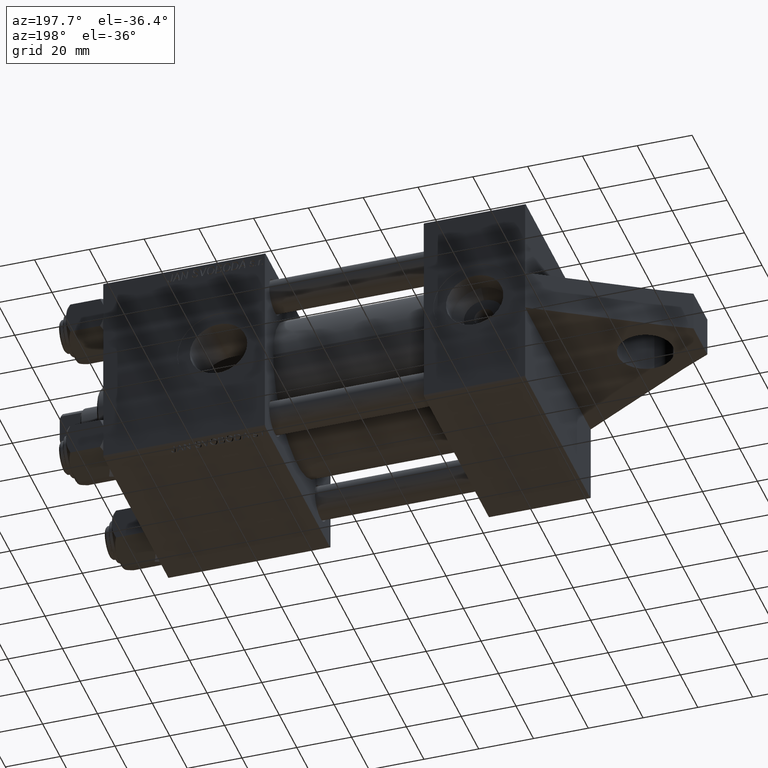
[diagram: clean part render]
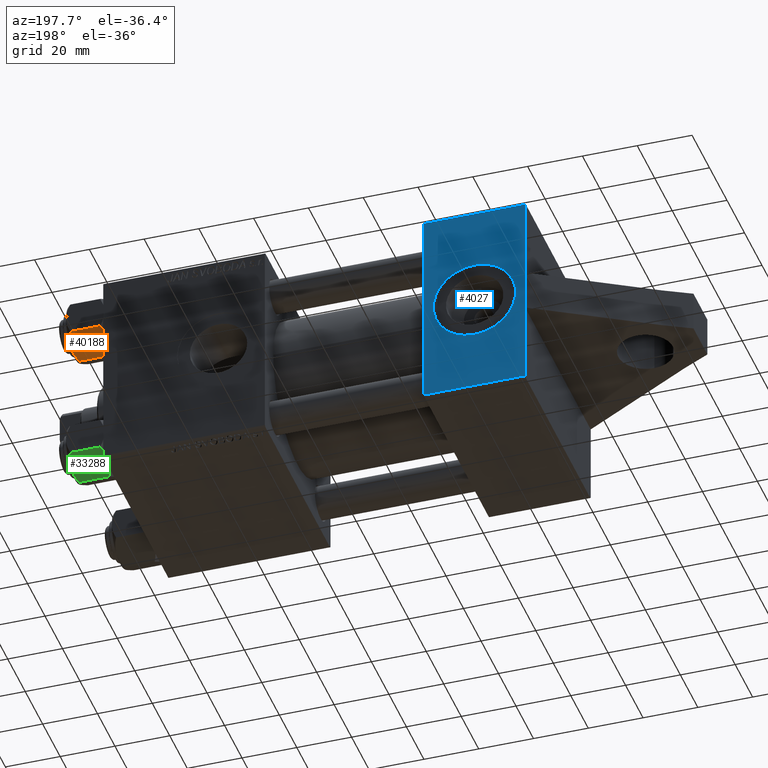
[diagram: same view with three faces highlighted in distinct colors, each labeled with its STEP entity id]
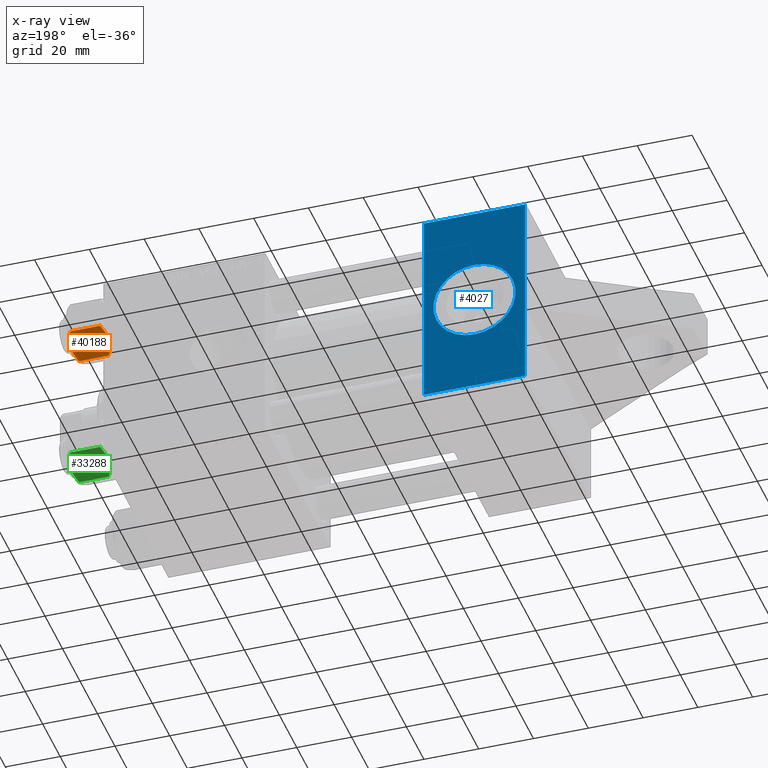
[diagram: x-ray of the same camera — body ghosted, the three highlighted faces saturated]
A machine part, auxiliary view with three faces highlighted in distinct colors.
The next image is the same camera in x-ray (body ghosted, the three faces saturated) — at least one of them is partly hidden behind the body in this view.
Their STEP definitions:

[orange] entity #40188 — the highlighted planar face has unit normal (0, -0.5, 0.866).
#633 = CARTESIAN_POINT ( 'NONE',  ( 5.810000000000000497, 10.06321519197518022, -12.44321519197518278 ) ) ;
#873 = EDGE_CURVE ( 'NONE', #41579, #23378, #41079, .T. ) ;
#991 = CARTESIAN_POINT ( 'NONE',  ( 3.958929922320420403, 10.06321519197517667, -0.7421398502354010773 ) ) ;
#2568 = EDGE_CURVE ( 'NONE', #31392, #43675, #12628, .T. ) ;
#4106 = B_SPLINE_CURVE_WITH_KNOTS ( 'NONE', 3,
 ( #34551, #13815, #6610, #38498, #38265, #41997, #27343, #20359, #28009 ),
 .UNSPECIFIED., .F., .F.,
 ( 4, 2, 1, 2, 4 ),
 ( 0.02074012592819901579, 0.02149589804477577970, 0.02225167016135254361, 0.02376321439450607489, 0.02678630286081313053 ),
 .UNSPECIFIED. ) ;
#5940 = DIRECTION ( 'NONE',  ( -0.000000000000000000, -0.000000000000000000, 1.000000000000000000 ) ) ;
#6117 = VECTOR ( 'NONE', #35184, 1000.000000000000000 ) ;
#6610 = CARTESIAN_POINT ( 'NONE',  ( -0.5112014849988877341, 10.06321519197518022, -0.009803979428914416996 ) ) ;
#6726 = PLANE ( 'NONE',  #43267 ) ;
#7289 = CARTESIAN_POINT ( 'NONE',  ( 5.359707691559674636, 10.06321519197518199, -1.331638653804653627 ) ) ;
#7421 = FACE_OUTER_BOUND ( 'NONE', #12762, .T. ) ;
#7517 = CARTESIAN_POINT ( 'NONE',  ( 3.474497094393250940, 10.06321519197517844, -0.5726960901042760232 ) ) ;
#7653 = CARTESIAN_POINT ( 'NONE',  ( -2.013954290287967019, 10.06321519197518022, -13.84298883202399821 ) ) ;
#8568 = CARTESIAN_POINT ( 'NONE',  ( -5.359707691559671083, 10.06321519197517844, -12.66836134619534526 ) ) ;
#12628 = B_SPLINE_CURVE_WITH_KNOTS ( 'NONE', 3,
 ( #17616, #21098, #18083, #35300, #31808, #28318, #29011, #46014, #24602 ),
 .UNSPECIFIED., .F., .F.,
 ( 4, 2, 1, 2, 4 ),
 ( 0.02074012592819901232, 0.02149589804477577970, 0.02225167016135254361, 0.02376321439450607489, 0.02678630286081313400 ),
 .UNSPECIFIED. ) ;
#12762 = EDGE_LOOP ( 'NONE', ( #45596, #33660, #39499, #30629, #43378, #24539 ) ) ;
#13015 = EDGE_CURVE ( 'NONE', #43675, #41579, #16876, .T. ) ;
#13601 = CARTESIAN_POINT ( 'NONE',  ( 5.810000000000000497, 10.06321519197518022, -14.00000000000000000 ) ) ;
#13815 = CARTESIAN_POINT ( 'NONE',  ( -0.2543996698847477700, 10.06321519197518199, 3.388131789017202589E-17 ) ) ;
#14020 = CARTESIAN_POINT ( 'NONE',  ( 0.000000000000000000, 10.06321519197518022, -14.00000000000000000 ) ) ;
#15060 = B_SPLINE_CURVE_WITH_KNOTS ( 'NONE', 3,
 ( #36271, #8568, #29520, #19300, #29762, #7653, #36052, #22311 ),
 .UNSPECIFIED., .F., .F.,
 ( 4, 2, 2, 4 ),
 ( 0.01467889604968878464, 0.01619420351931634069, 0.01770951098894389675, 0.02074012592819901232 ),
 .UNSPECIFIED. ) ;
#15190 = CARTESIAN_POINT ( 'NONE',  ( 1.020132157807626339, 10.06321519197518199, -1.829591166069289225E-16 ) ) ;
#16876 = LINE ( 'NONE', #13601, #33298 ) ;
#17616 = CARTESIAN_POINT ( 'NONE',  ( 0.000000000000000000, 10.06321519197518022, -14.00000000000000000 ) ) ;
#17791 = VERTEX_POINT ( 'NONE', #36733 ) ;
#18083 = CARTESIAN_POINT ( 'NONE',  ( 0.5112014849988876231, 10.06321519197518022, -13.99019602057108536 ) ) ;
#18461 = CARTESIAN_POINT ( 'NONE',  ( 5.810000000000000497, 10.06321519197518022, -1.556784808024817890 ) ) ;
#18462 = CARTESIAN_POINT ( 'NONE',  ( 4.900668367960795635, 10.06321519197518022, -1.121556683709774793 ) ) ;
#19300 = CARTESIAN_POINT ( 'NONE',  ( -3.958929922320416850, 10.06321519197517844, -13.25786014976459803 ) ) ;
#20321 = CARTESIAN_POINT ( 'NONE',  ( -5.809999999999997833, 10.06321519197518022, -14.00000000000000000 ) ) ;
#20359 = CARTESIAN_POINT ( 'NONE',  ( -4.908816193182378385, 10.06321519197518199, -1.106192904616008388 ) ) ;
#20770 = LINE ( 'NONE', #20321, #6117 ) ;
#21098 = CARTESIAN_POINT ( 'NONE',  ( 0.2543996698847478255, 10.06321519197517844, -14.00000000000000000 ) ) ;
#21169 = CARTESIAN_POINT ( 'NONE',  ( -5.809999999999997833, 10.06321519197518022, -12.44321519197518455 ) ) ;
#21493 = CARTESIAN_POINT ( 'NONE',  ( 2.013954290287964799, 10.06321519197518022, -0.1570111679759990109 ) ) ;
#21623 = DIRECTION ( 'NONE',  ( 0.000000000000000000, -1.000000000000000000, 0.000000000000000000 ) ) ;
#22311 = CARTESIAN_POINT ( 'NONE',  ( 0.000000000000000000, 10.06321519197518022, -14.00000000000000000 ) ) ;
#23378 = VERTEX_POINT ( 'NONE', #32767 ) ;
#24539 = ORIENTED_EDGE ( 'NONE', *, *, #2568, .F. ) ;
#24602 = CARTESIAN_POINT ( 'NONE',  ( 5.810000000000000497, 10.06321519197518022, -12.44321519197518278 ) ) ;
#27343 = CARTESIAN_POINT ( 'NONE',  ( -3.960942496020599002, 10.06321519197518199, -0.7115728323610420736 ) ) ;
#28009 = CARTESIAN_POINT ( 'NONE',  ( -5.809999999999997833, 10.06321519197518022, -1.556784808024815447 ) ) ;
#28136 = CARTESIAN_POINT ( 'NONE',  ( -5.809999999999997833, 10.06321519197518022, -14.00000000000000000 ) ) ;
#28318 = CARTESIAN_POINT ( 'NONE',  ( 2.508586450168038162, 10.06321519197517844, -13.70242473679676642 ) ) ;
#29011 = CARTESIAN_POINT ( 'NONE',  ( 3.960942496020600778, 10.06321519197518022, -13.28842716763895737 ) ) ;
#29520 = CARTESIAN_POINT ( 'NONE',  ( -4.900668367960792082, 10.06321519197518199, -12.87844331629022676 ) ) ;
#29762 = CARTESIAN_POINT ( 'NONE',  ( -3.474497094393252716, 10.06321519197518022, -13.42730390989572342 ) ) ;
#30629 = ORIENTED_EDGE ( 'NONE', *, *, #873, .F. ) ;
#31392 = VERTEX_POINT ( 'NONE', #14020 ) ;
#31808 = CARTESIAN_POINT ( 'NONE',  ( 1.772424303831127146, 10.06321519197517667, -13.86611290782775896 ) ) ;
#32767 = CARTESIAN_POINT ( 'NONE',  ( 0.000000000000000000, 10.06321519197518022, 0.000000000000000000 ) ) ;
#33298 = VECTOR ( 'NONE', #5940, 1000.000000000000000 ) ;
#33660 = ORIENTED_EDGE ( 'NONE', *, *, #40662, .T. ) ;
#34551 = CARTESIAN_POINT ( 'NONE',  ( 0.000000000000000000, 10.06321519197518022, 0.000000000000000000 ) ) ;
#35184 = DIRECTION ( 'NONE',  ( -0.000000000000000000, -0.000000000000000000, 1.000000000000000000 ) ) ;
#35300 = CARTESIAN_POINT ( 'NONE',  ( 1.018274738099083976, 10.06321519197517844, -13.95177257919928948 ) ) ;
#35818 = DIRECTION ( 'NONE',  ( 0.000000000000000000, -0.000000000000000000, -1.000000000000000000 ) ) ;
#36052 = CARTESIAN_POINT ( 'NONE',  ( -1.020132157807625006, 10.06321519197517844, -13.99999999999999822 ) ) ;
#36271 = CARTESIAN_POINT ( 'NONE',  ( -5.809999999999997833, 10.06321519197518022, -12.44321519197518455 ) ) ;
#36733 = CARTESIAN_POINT ( 'NONE',  ( -5.809999999999997833, 10.06321519197518022, -1.556784808024815447 ) ) ;
#38265 = CARTESIAN_POINT ( 'NONE',  ( -1.772424303831124259, 10.06321519197518199, -0.1338870921722387641 ) ) ;
#38266 = VERTEX_POINT ( 'NONE', #21169 ) ;
#38498 = CARTESIAN_POINT ( 'NONE',  ( -1.018274738099083976, 10.06321519197518199, -0.04822742080070995668 ) ) ;
#39499 = ORIENTED_EDGE ( 'NONE', *, *, #39505, .F. ) ;
#39505 = EDGE_CURVE ( 'NONE', #23378, #17791, #4106, .T. ) ;
#39856 = CARTESIAN_POINT ( 'NONE',  ( 5.810000000000000497, 10.06321519197518022, -1.556784808024817890 ) ) ;
#40188 = ADVANCED_FACE ( 'NONE', ( #7421 ), #6726, .F. ) ;
#40662 = EDGE_CURVE ( 'NONE', #38266, #17791, #20770, .T. ) ;
#41079 = B_SPLINE_CURVE_WITH_KNOTS ( 'NONE', 3,
 ( #39856, #7289, #18462, #991, #7517, #21493, #15190, #42679 ),
 .UNSPECIFIED., .F., .F.,
 ( 4, 2, 2, 4 ),
 ( 0.01467889604968878811, 0.01619420351931634416, 0.01770951098894390022, 0.02074012592819901579 ),
 .UNSPECIFIED. ) ;
#41579 = VERTEX_POINT ( 'NONE', #18461 ) ;
#41997 = CARTESIAN_POINT ( 'NONE',  ( -2.508586450168036386, 10.06321519197518022, -0.2975752632032304112 ) ) ;
#42573 = EDGE_CURVE ( 'NONE', #38266, #31392, #15060, .T. ) ;
#42679 = CARTESIAN_POINT ( 'NONE',  ( 0.000000000000000000, 10.06321519197518022, 0.000000000000000000 ) ) ;
#43267 = AXIS2_PLACEMENT_3D ( 'NONE', #28136, #21623, #35818 ) ;
#43378 = ORIENTED_EDGE ( 'NONE', *, *, #13015, .F. ) ;
#43675 = VERTEX_POINT ( 'NONE', #633 ) ;
#45596 = ORIENTED_EDGE ( 'NONE', *, *, #42573, .F. ) ;
#46014 = CARTESIAN_POINT ( 'NONE',  ( 4.908816193182378385, 10.06321519197517667, -12.89380709538398939 ) ) ;

[blue] entity #4027 — the highlighted planar face has unit normal (-0, 1, 0).
#337 = EDGE_CURVE ( 'NONE', #44621, #10265, #11565, .T. ) ;
#1227 = CARTESIAN_POINT ( 'NONE',  ( 18.50000000000000000, 1.999870792976790439E-15, -37.50000000000000711 ) ) ;
#1988 = CARTESIAN_POINT ( 'NONE',  ( 0.000000000000000000, -7.500000000000000000, -37.50000000000000711 ) ) ;
#2546 = VECTOR ( 'NONE', #24828, 1000.000000000000000 ) ;
#2604 = CIRCLE ( 'NONE', #27133, 15.00000000000000000 ) ;
#2761 = ORIENTED_EDGE ( 'NONE', *, *, #26164, .T. ) ;
#3654 = CARTESIAN_POINT ( 'NONE',  ( 37.00000000000000000, 37.49999999999999289, -37.50000000000000000 ) ) ;
#3843 = ORIENTED_EDGE ( 'NONE', *, *, #30099, .T. ) ;
#3907 = DIRECTION ( 'NONE',  ( 0.000000000000000000, 1.000000000000000000, 9.251858538542972814E-17 ) ) ;
#4027 = ADVANCED_FACE ( 'NONE', ( #28568, #39043 ), #32292, .T. ) ;
#7567 = ORIENTED_EDGE ( 'NONE', *, *, #28515, .F. ) ;
#8667 = DIRECTION ( 'NONE',  ( 0.000000000000000000, -1.734723475976806848E-16, -1.000000000000000000 ) ) ;
#10265 = VERTEX_POINT ( 'NONE', #24297 ) ;
#11061 = VECTOR ( 'NONE', #16196, 1000.000000000000000 ) ;
#11565 = LINE ( 'NONE', #29966, #27842 ) ;
#11979 = VERTEX_POINT ( 'NONE', #33645 ) ;
#14128 = LINE ( 'NONE', #3654, #2546 ) ;
#14425 = EDGE_CURVE ( 'NONE', #10265, #34228, #14128, .T. ) ;
#16196 = DIRECTION ( 'NONE',  ( 0.000000000000000000, 1.000000000000000000, 0.000000000000000000 ) ) ;
#16269 = ORIENTED_EDGE ( 'NONE', *, *, #38762, .F. ) ;
#16354 = EDGE_CURVE ( 'NONE', #39509, #42603, #2604, .T. ) ;
#17324 = CARTESIAN_POINT ( 'NONE',  ( 18.50000000000000000, 15.00000000000000178, -37.50000000000000711 ) ) ;
#18245 = VERTEX_POINT ( 'NONE', #24551 ) ;
#18411 = VECTOR ( 'NONE', #29664, 1000.000000000000000 ) ;
#18738 = CARTESIAN_POINT ( 'NONE',  ( 0.000000000000000000, 37.49999999999999289, -37.50000000000000000 ) ) ;
#18884 = ORIENTED_EDGE ( 'NONE', *, *, #14425, .T. ) ;
#19516 = CARTESIAN_POINT ( 'NONE',  ( 18.50000000000000000, 1.999870792976790439E-15, -37.50000000000000711 ) ) ;
#21054 = EDGE_CURVE ( 'NONE', #18245, #11979, #36418, .T. ) ;
#21810 = DIRECTION ( 'NONE',  ( 0.000000000000000000, 9.251858538542972814E-17, -1.000000000000000000 ) ) ;
#21949 = CARTESIAN_POINT ( 'NONE',  ( 0.000000000000000000, 37.49999999999999289, -37.50000000000000000 ) ) ;
#24297 = CARTESIAN_POINT ( 'NONE',  ( 37.00000000000000000, 36.99999999999997868, -37.50000000000000000 ) ) ;
#24424 = AXIS2_PLACEMENT_3D ( 'NONE', #19516, #33473, #37199 ) ;
#24551 = CARTESIAN_POINT ( 'NONE',  ( 0.000000000000000000, -7.500000000000000000, -37.50000000000000711 ) ) ;
#24828 = DIRECTION ( 'NONE',  ( 0.000000000000000000, -1.000000000000000000, -9.251858538542972814E-17 ) ) ;
#25012 = EDGE_LOOP ( 'NONE', ( #25968, #7567 ) ) ;
#25023 = VECTOR ( 'NONE', #30128, 1000.000000000000000 ) ;
#25940 = LINE ( 'NONE', #43187, #18411 ) ;
#25968 = ORIENTED_EDGE ( 'NONE', *, *, #16354, .F. ) ;
#26164 = EDGE_CURVE ( 'NONE', #34228, #11979, #25940, .T. ) ;
#27133 = AXIS2_PLACEMENT_3D ( 'NONE', #1227, #8667, #30087 ) ;
#27842 = VECTOR ( 'NONE', #41137, 1000.000000000000000 ) ;
#28515 = EDGE_CURVE ( 'NONE', #42603, #39509, #42267, .T. ) ;
#28568 = FACE_BOUND ( 'NONE', #25012, .T. ) ;
#28943 = CARTESIAN_POINT ( 'NONE',  ( 37.00000000000000000, -37.00000000000002132, -37.50000000000000711 ) ) ;
#29075 = CARTESIAN_POINT ( 'NONE',  ( 18.50000000000000355, -14.99999999999999822, -37.50000000000000711 ) ) ;
#29664 = DIRECTION ( 'NONE',  ( -1.000000000000000000, 0.000000000000000000, 0.000000000000000000 ) ) ;
#29966 = CARTESIAN_POINT ( 'NONE',  ( 37.00000000000000000, 36.99999999999997868, -37.50000000000000000 ) ) ;
#30087 = DIRECTION ( 'NONE',  ( 0.000000000000000000, 1.000000000000000000, 0.000000000000000000 ) ) ;
#30099 = EDGE_CURVE ( 'NONE', #18245, #37793, #45279, .T. ) ;
#30128 = DIRECTION ( 'NONE',  ( 0.000000000000000000, -1.000000000000000000, -9.251858538542972814E-17 ) ) ;
#32292 = PLANE ( 'NONE',  #39148 ) ;
#33473 = DIRECTION ( 'NONE',  ( 0.000000000000000000, -1.734723475976806848E-16, -1.000000000000000000 ) ) ;
#33645 = CARTESIAN_POINT ( 'NONE',  ( 0.000000000000000000, -37.00000000000002132, -37.50000000000000711 ) ) ;
#34228 = VERTEX_POINT ( 'NONE', #28943 ) ;
#35574 = CARTESIAN_POINT ( 'NONE',  ( 0.000000000000000000, 36.99999999999997868, -37.50000000000000000 ) ) ;
#35725 = EDGE_LOOP ( 'NONE', ( #16269, #44979, #18884, #2761, #45219, #3843 ) ) ;
#36418 = LINE ( 'NONE', #18738, #25023 ) ;
#37199 = DIRECTION ( 'NONE',  ( 0.000000000000000000, 1.000000000000000000, 0.000000000000000000 ) ) ;
#37793 = VERTEX_POINT ( 'NONE', #43868 ) ;
#38595 = CARTESIAN_POINT ( 'NONE',  ( 37.00000000000000000, 37.49999999999999289, -37.50000000000000000 ) ) ;
#38762 = EDGE_CURVE ( 'NONE', #44621, #37793, #43374, .T. ) ;
#39043 = FACE_OUTER_BOUND ( 'NONE', #35725, .T. ) ;
#39148 = AXIS2_PLACEMENT_3D ( 'NONE', #38595, #21810, #3907 ) ;
#39509 = VERTEX_POINT ( 'NONE', #17324 ) ;
#41137 = DIRECTION ( 'NONE',  ( 1.000000000000000000, 0.000000000000000000, 0.000000000000000000 ) ) ;
#42267 = CIRCLE ( 'NONE', #24424, 15.00000000000000000 ) ;
#42603 = VERTEX_POINT ( 'NONE', #29075 ) ;
#43187 = CARTESIAN_POINT ( 'NONE',  ( 0.000000000000000000, -37.00000000000002132, -37.50000000000000711 ) ) ;
#43374 = LINE ( 'NONE', #21949, #45462 ) ;
#43601 = DIRECTION ( 'NONE',  ( 0.000000000000000000, -1.000000000000000000, -9.251858538542972814E-17 ) ) ;
#43868 = CARTESIAN_POINT ( 'NONE',  ( 0.000000000000000000, 7.500000000000000000, -37.50000000000000711 ) ) ;
#44621 = VERTEX_POINT ( 'NONE', #35574 ) ;
#44979 = ORIENTED_EDGE ( 'NONE', *, *, #337, .T. ) ;
#45219 = ORIENTED_EDGE ( 'NONE', *, *, #21054, .F. ) ;
#45279 = LINE ( 'NONE', #1988, #11061 ) ;
#45462 = VECTOR ( 'NONE', #43601, 1000.000000000000000 ) ;

[green] entity #33288 — the highlighted planar face has unit normal (-0, -0.5, 0.866).
#17 = CARTESIAN_POINT ( 'NONE',  ( 11.62000000000000099, -1.795242522838921761E-15, -12.44321519197518455 ) ) ;
#1449 = CARTESIAN_POINT ( 'NONE',  ( 8.715000000000001634, -5.031607595987590997, 0.000000000000000000 ) ) ;
#1684 = CARTESIAN_POINT ( 'NONE',  ( 8.715000000000001634, -5.031607595987590997, -14.00000000000000000 ) ) ;
#2136 = CARTESIAN_POINT ( 'NONE',  ( 9.220295946303432189, -4.156409344131454020, 1.753358200816401307E-15 ) ) ;
#2137 = CARTESIAN_POINT ( 'NONE',  ( 9.729165168613654657, -3.275021996682085490, -13.80960203119266083 ) ) ;
#2840 = VECTOR ( 'NONE', #7854, 1000.000000000000000 ) ;
#3003 = CARTESIAN_POINT ( 'NONE',  ( 6.265018354709775750, -9.275100283241444643, -12.89823354668504507 ) ) ;
#3799 = CARTESIAN_POINT ( 'NONE',  ( 11.16445427487471775, -0.7890283410877989567, -12.89876091710046424 ) ) ;
#4628 = LINE ( 'NONE', #19297, #13293 ) ;
#4708 = EDGE_CURVE ( 'NONE', #5499, #30318, #5906, .T. ) ;
#4710 = CARTESIAN_POINT ( 'NONE',  ( 11.62000000000000099, -1.813166800014576593E-15, -14.00000000000000000 ) ) ;
#5499 = VERTEX_POINT ( 'NONE', #45865 ) ;
#5906 = B_SPLINE_CURVE_WITH_KNOTS ( 'NONE', 3,
 ( #45477, #34994, #14264, #28457, #17768, #14038, #35435, #45691 ),
 .UNSPECIFIED., .F., .F.,
 ( 4, 2, 2, 4 ),
 ( 2.544312114902182352E-07, 0.003011550106433538189, 0.004517197944044561847, 0.006022845781655586372 ),
 .UNSPECIFIED. ) ;
#6649 = VERTEX_POINT ( 'NONE', #17 ) ;
#7408 = CARTESIAN_POINT ( 'NONE',  ( 5.810000000000000497, -10.06321519197517667, -14.00000000000000000 ) ) ;
#7733 = PLANE ( 'NONE',  #39408 ) ;
#7854 = DIRECTION ( 'NONE',  ( -0.000000000000000000, -0.000000000000000000, 1.000000000000000000 ) ) ;
#8650 = CARTESIAN_POINT ( 'NONE',  ( 10.69859855102500745, -1.595914123792264050, -13.28585617404753094 ) ) ;
#8863 = EDGE_CURVE ( 'NONE', #9239, #40334, #22772, .T. ) ;
#9239 = VERTEX_POINT ( 'NONE', #13128 ) ;
#9523 = B_SPLINE_CURVE_WITH_KNOTS ( 'NONE', 3,
 ( #10763, #3799, #8650, #40550, #2137, #26585, #12623, #1684 ),
 .UNSPECIFIED., .F., .F.,
 ( 4, 2, 2, 4 ),
 ( 2.544312114905217906E-07, 0.003011550106433539490, 0.004517197944044564449, 0.006022845781655588975 ),
 .UNSPECIFIED. ) ;
#9566 = CARTESIAN_POINT ( 'NONE',  ( 10.69662495661650503, -1.599332489581334560, -0.7114554706434500497 ) ) ;
#9704 = EDGE_CURVE ( 'NONE', #40334, #5499, #42798, .T. ) ;
#9929 = CARTESIAN_POINT ( 'NONE',  ( 5.810000000000000497, -10.06321519197517667, -12.44321519197518633 ) ) ;
#10763 = CARTESIAN_POINT ( 'NONE',  ( 11.62000000000000099, -1.795242522838921761E-15, -12.44321519197518455 ) ) ;
#12144 = CARTESIAN_POINT ( 'NONE',  ( 9.716999946243698005, -3.296092779912227932, -0.1545239700039841013 ) ) ;
#12623 = CARTESIAN_POINT ( 'NONE',  ( 8.969430103550385169, -4.590921729663315354, -14.00000000000000533 ) ) ;
#13128 = CARTESIAN_POINT ( 'NONE',  ( 8.715000000000001634, -5.031607595987590997, -14.00000000000000000 ) ) ;
#13293 = VECTOR ( 'NONE', #25571, 1000.000000000000000 ) ;
#14038 = CARTESIAN_POINT ( 'NONE',  ( 8.202333004087901003, -5.919572880271055659, -0.03994118060690762112 ) ) ;
#14264 = CARTESIAN_POINT ( 'NONE',  ( 6.731401448974986934, -8.467301068182914392, -0.7141438259524658383 ) ) ;
#16156 = ORIENTED_EDGE ( 'NONE', *, *, #9704, .F. ) ;
#17514 = ORIENTED_EDGE ( 'NONE', *, *, #4708, .F. ) ;
#17768 = CARTESIAN_POINT ( 'NONE',  ( 7.700834831386345058, -6.788193195293096949, -0.1903979688073415555 ) ) ;
#18915 = DIRECTION ( 'NONE',  ( -0.5000000000000001110, -0.8660254037844384856, 0.000000000000000000 ) ) ;
#19297 = CARTESIAN_POINT ( 'NONE',  ( 11.62000000000000099, -1.813166800014576593E-15, -14.00000000000000000 ) ) ;
#19376 = CARTESIAN_POINT ( 'NONE',  ( 11.62000000000000099, -1.607967606633101042E-15, -1.556784808024815669 ) ) ;
#19719 = ORIENTED_EDGE ( 'NONE', *, *, #29721, .T. ) ;
#22265 = EDGE_CURVE ( 'NONE', #30318, #31586, #32007, .T. ) ;
#22772 = B_SPLINE_CURVE_WITH_KNOTS ( 'NONE', 3,
 ( #23489, #30923, #45136, #27444, #3003, #41656 ),
 .UNSPECIFIED., .F., .F.,
 ( 4, 2, 4 ),
 ( 0.006022845781655588975, 0.009013049135303635023, 0.01200325248895167674 ),
 .UNSPECIFIED. ) ;
#23489 = CARTESIAN_POINT ( 'NONE',  ( 8.715000000000001634, -5.031607595987590997, -14.00000000000000000 ) ) ;
#23764 = CARTESIAN_POINT ( 'NONE',  ( 11.62000000000000099, -1.607967606633101042E-15, -1.556784808024815669 ) ) ;
#23981 = ORIENTED_EDGE ( 'NONE', *, *, #8863, .F. ) ;
#25571 = DIRECTION ( 'NONE',  ( -0.000000000000000000, -0.000000000000000000, 1.000000000000000000 ) ) ;
#26538 = EDGE_CURVE ( 'NONE', #6649, #9239, #9523, .T. ) ;
#26585 = CARTESIAN_POINT ( 'NONE',  ( 9.227666995912104042, -4.143642311704127223, -13.96005881939309212 ) ) ;
#26824 = CARTESIAN_POINT ( 'NONE',  ( 11.16498164529022574, -0.7881149087337310233, -1.101766453314954264 ) ) ;
#26871 = ORIENTED_EDGE ( 'NONE', *, *, #22265, .F. ) ;
#27444 = CARTESIAN_POINT ( 'NONE',  ( 6.733375043383497349, -8.463882702393844326, -13.28854452935655139 ) ) ;
#28457 = CARTESIAN_POINT ( 'NONE',  ( 7.455303369716810735, -7.213466161761385109, -0.3002673809867383303 ) ) ;
#29721 = EDGE_CURVE ( 'NONE', #6649, #31586, #4628, .T. ) ;
#29880 = CARTESIAN_POINT ( 'NONE',  ( 8.715000000000001634, -5.031607595987590997, 0.000000000000000000 ) ) ;
#30318 = VERTEX_POINT ( 'NONE', #29880 ) ;
#30923 = CARTESIAN_POINT ( 'NONE',  ( 8.209704053696569304, -5.906805847843729751, -14.00000000000000711 ) ) ;
#31586 = VERTEX_POINT ( 'NONE', #23764 ) ;
#32007 = B_SPLINE_CURVE_WITH_KNOTS ( 'NONE', 3,
 ( #1449, #2136, #12144, #9566, #26824, #19376 ),
 .UNSPECIFIED., .F., .F.,
 ( 4, 2, 4 ),
 ( 0.006022845781655586372, 0.009013049135303633289, 0.01200325248895168020 ),
 .UNSPECIFIED. ) ;
#33288 = ADVANCED_FACE ( 'NONE', ( #39632 ), #7733, .F. ) ;
#34994 = CARTESIAN_POINT ( 'NONE',  ( 6.265545725125283738, -9.274186850887380373, -1.101239082899531319 ) ) ;
#35435 = CARTESIAN_POINT ( 'NONE',  ( 8.460569896449618099, -5.472293462311865753, 1.694065894508600678E-15 ) ) ;
#36359 = DIRECTION ( 'NONE',  ( -0.8660254037844385966, 0.5000000000000002220, 0.000000000000000000 ) ) ;
#39408 = AXIS2_PLACEMENT_3D ( 'NONE', #4710, #36359, #18915 ) ;
#39632 = FACE_OUTER_BOUND ( 'NONE', #44187, .T. ) ;
#40334 = VERTEX_POINT ( 'NONE', #9929 ) ;
#40550 = CARTESIAN_POINT ( 'NONE',  ( 9.974696630283194310, -2.849749030213795997, -13.69973261901326289 ) ) ;
#41143 = ORIENTED_EDGE ( 'NONE', *, *, #26538, .F. ) ;
#41656 = CARTESIAN_POINT ( 'NONE',  ( 5.810000000000000497, -10.06321519197517667, -12.44321519197518633 ) ) ;
#42798 = LINE ( 'NONE', #7408, #2840 ) ;
#44187 = EDGE_LOOP ( 'NONE', ( #41143, #19719, #26871, #17514, #16156, #23981 ) ) ;
#45136 = CARTESIAN_POINT ( 'NONE',  ( 7.713000053756304375, -6.767122412062953174, -13.84547602999601601 ) ) ;
#45477 = CARTESIAN_POINT ( 'NONE',  ( 5.810000000000000497, -10.06321519197517667, -1.556784808024813671 ) ) ;
#45691 = CARTESIAN_POINT ( 'NONE',  ( 8.715000000000001634, -5.031607595987590997, 0.000000000000000000 ) ) ;
#45865 = CARTESIAN_POINT ( 'NONE',  ( 5.810000000000000497, -10.06321519197517667, -1.556784808024813671 ) ) ;